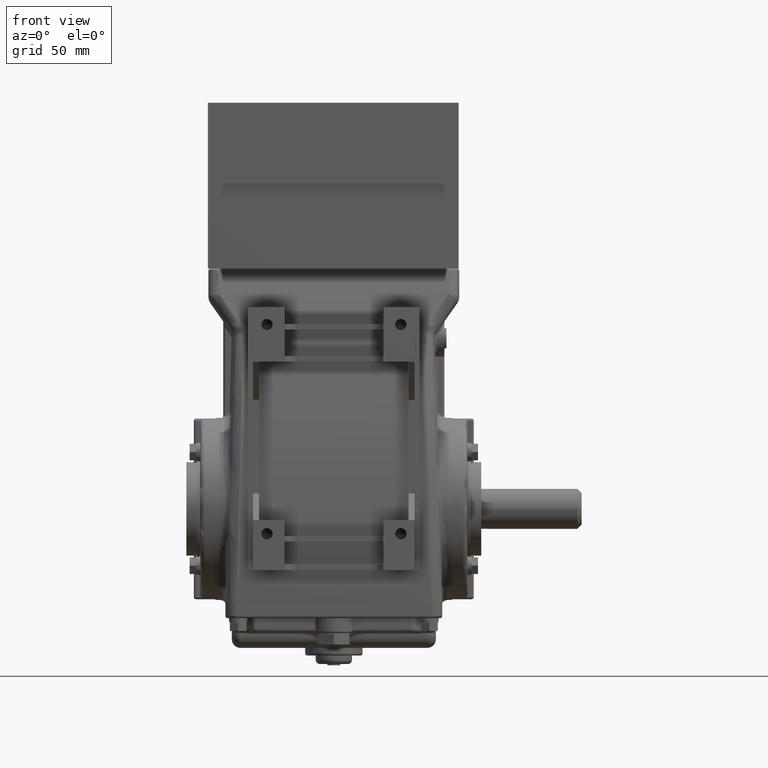
[diagram: clean part render]
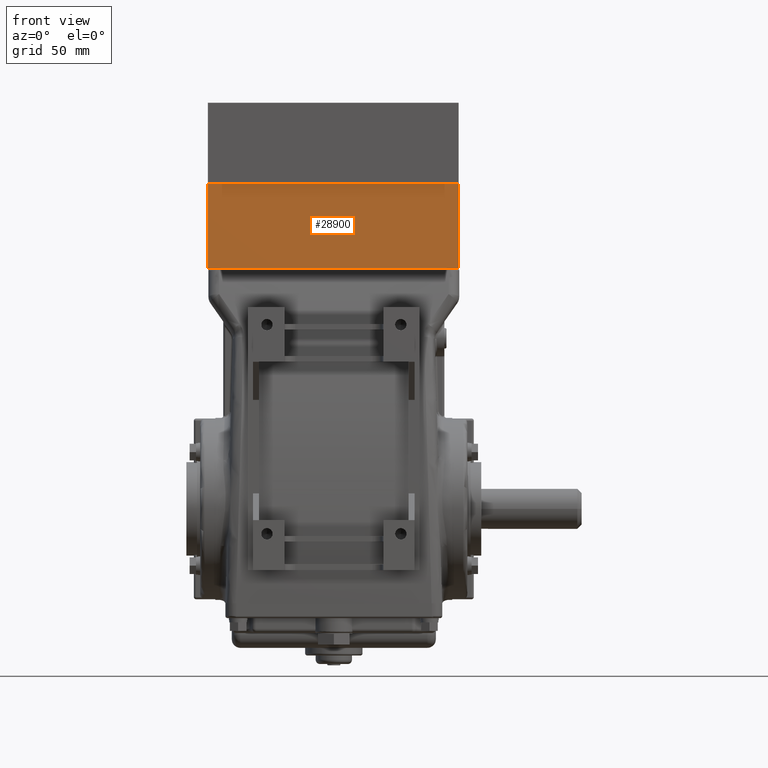
[diagram: same view with one face highlighted and labeled with its STEP entity id]
A machine part, front view. The second image highlights one B-rep face of the part: STEP entity #28900.
In plain terms, the highlighted planar face has unit normal (-0, 1, -0).
Its self-contained STEP definition (entity closure, byte-faithful):
#8977 = CARTESIAN_POINT ( 'NONE',  ( 0.0000000000000000000, -2.799999999999996300, -2.949999999999998800 ) ) ;
#8978 = DIRECTION ( 'NONE',  ( 1.000000000000000000, 2.775557561562892600E-017, 0.0000000000000000000 ) ) ;
#8979 = VECTOR ( 'NONE', #8978, 39.37007874015748100 ) ;
#8980 = CARTESIAN_POINT ( 'NONE',  ( 0.0000000000000000000, -2.799999999999996300, -2.949999999999998800 ) ) ;
#8981 = LINE ( 'NONE', #8980, #8979 ) ;
#8983 = CARTESIAN_POINT ( 'NONE',  ( 2.000000000000002700, -2.799999999999996300, -2.949999999999998800 ) ) ;
#9122 = CARTESIAN_POINT ( 'NONE',  ( 2.000000000000000400, -2.799999999999996700, 2.950000000000001100 ) ) ;
#9123 = CARTESIAN_POINT ( 'NONE',  ( 2.185478394931410600E-015, -2.799999999999996700, 2.950000000000001100 ) ) ;
#9124 = DIRECTION ( 'NONE',  ( 1.000000000000000000, 2.775557561562892600E-017, 0.0000000000000000000 ) ) ;
#9125 = VECTOR ( 'NONE', #9124, 39.37007874015748100 ) ;
#9126 = CARTESIAN_POINT ( 'NONE',  ( 2.185478394931410600E-015, -2.799999999999996700, 2.950000000000001100 ) ) ;
#9127 = LINE ( 'NONE', #9126, #9125 ) ;
#9333 = DIRECTION ( 'NONE',  ( 0.0000000000000000000, 1.232595164407830900E-032, -1.000000000000000000 ) ) ;
#9334 = VECTOR ( 'NONE', #9333, 39.37007874015748100 ) ;
#9335 = CARTESIAN_POINT ( 'NONE',  ( 2.185478394931410600E-015, -2.799999999999996700, 2.950000000000001100 ) ) ;
#9336 = LINE ( 'NONE', #9335, #9334 ) ;
#9423 = DIRECTION ( 'NONE',  ( 0.0000000000000000000, 1.232595164407830900E-032, -1.000000000000000000 ) ) ;
#9424 = VECTOR ( 'NONE', #9423, 39.37007874015748100 ) ;
#9425 = CARTESIAN_POINT ( 'NONE',  ( 2.000000000000000400, -2.799999999999996700, 2.950000000000001100 ) ) ;
#9426 = DIRECTION ( 'NONE',  ( 0.0000000000000000000, -1.232595164407830900E-032, 1.000000000000000000 ) ) ;
#9427 = DIRECTION ( 'NONE',  ( 2.775557561562892600E-017, 1.000000000000000000, 1.232595164407830900E-032 ) ) ;
#9428 = CARTESIAN_POINT ( 'NONE',  ( 2.185478394931410600E-015, -2.799999999999996700, 2.950000000000001100 ) ) ;
#9429 = AXIS2_PLACEMENT_3D ( 'NONE', #9428, #9427, #9426 ) ;
#9430 = PLANE ( 'NONE',  #9429 ) ;
#9431 = LINE ( 'NONE', #9425, #9424 ) ;
#9432 = FACE_OUTER_BOUND ( 'NONE', #28901, .T. ) ;
#28654 = VERTEX_POINT ( 'NONE', #8983 ) ;
#28657 = EDGE_CURVE ( 'NONE', #28658, #28654, #8981, .T. ) ;
#28658 = VERTEX_POINT ( 'NONE', #8977 ) ;
#28716 = EDGE_CURVE ( 'NONE', #28717, #28718, #9127, .T. ) ;
#28717 = VERTEX_POINT ( 'NONE', #9123 ) ;
#28718 = VERTEX_POINT ( 'NONE', #9122 ) ;
#28846 = EDGE_CURVE ( 'NONE', #28717, #28658, #9336, .T. ) ;
#28900 = ADVANCED_FACE ( 'NONE', ( #9432 ), #9430, .F. ) ;
#28901 = EDGE_LOOP ( 'NONE', ( #28903, #28904, #28906, #28907 ) ) ;
#28903 = ORIENTED_EDGE ( 'NONE', *, *, #28657, .T. ) ;
#28904 = ORIENTED_EDGE ( 'NONE', *, *, #28905, .F. ) ;
#28905 = EDGE_CURVE ( 'NONE', #28718, #28654, #9431, .T. ) ;
#28906 = ORIENTED_EDGE ( 'NONE', *, *, #28716, .F. ) ;
#28907 = ORIENTED_EDGE ( 'NONE', *, *, #28846, .T. ) ;